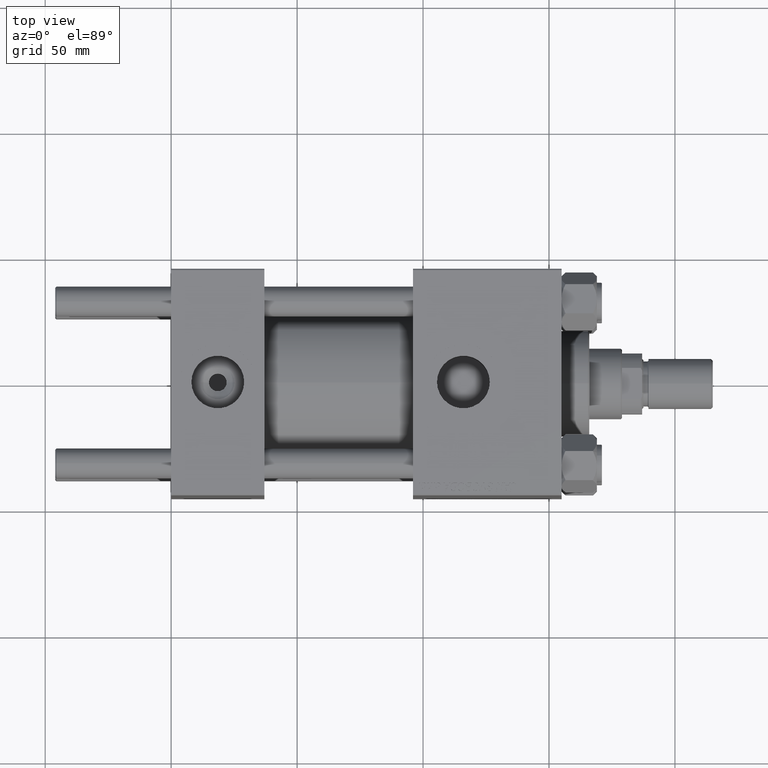
[diagram: clean part render]
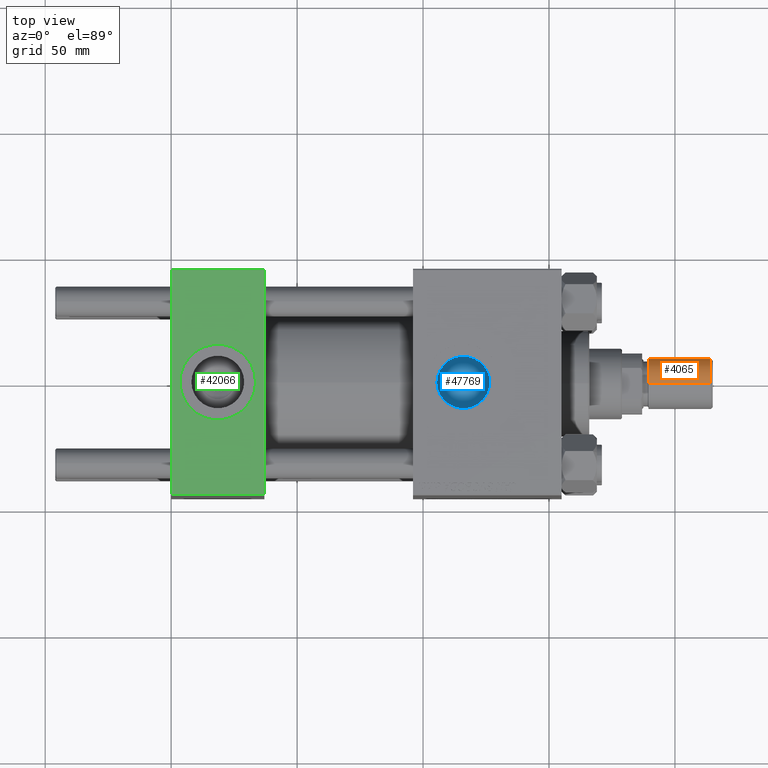
[diagram: same view with three faces highlighted in distinct colors, each labeled with its STEP entity id]
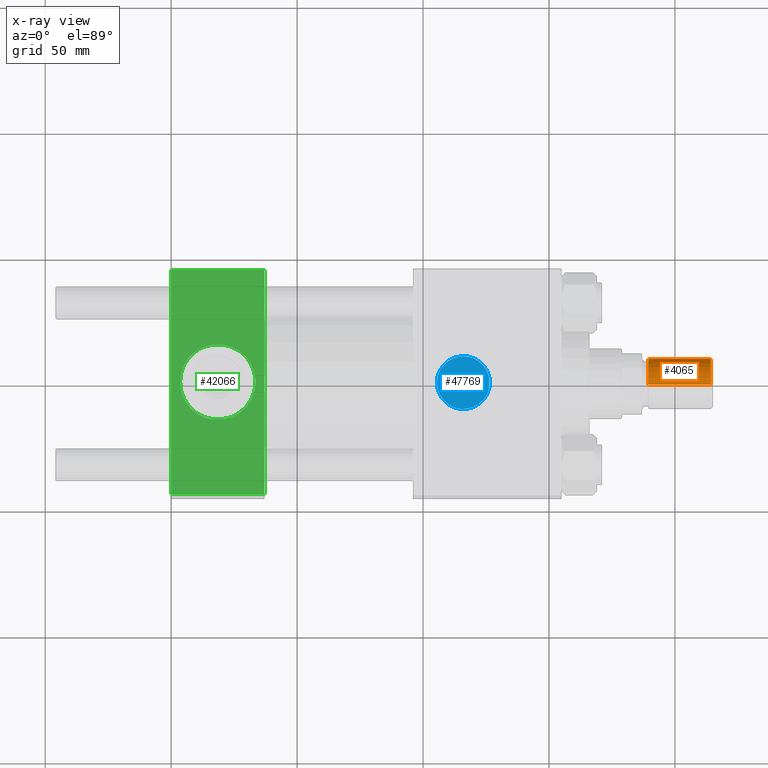
[diagram: x-ray of the same camera — body ghosted, the three highlighted faces saturated]
A machine part, top view with three faces highlighted in distinct colors.
The next image is the same camera in x-ray (body ghosted, the three faces saturated) — at least one of them is partly hidden behind the body in this view.
Their STEP definitions:

[orange] entity #4065 — the highlighted cylindrical surface (edge-blend (fillet) strip) has radius 10 mm, axis along (1, -0, 0).
#231 = CARTESIAN_POINT ( 'NONE',  ( 0.000000000000000000, 0.000000000000000000, 25.50000000000000000 ) ) ;
#1172 = VERTEX_POINT ( 'NONE', #12882 ) ;
#3226 = VERTEX_POINT ( 'NONE', #41920 ) ;
#4065 = ADVANCED_FACE ( 'NONE', ( #27543 ), #20123, .T. ) ;
#4447 = AXIS2_PLACEMENT_3D ( 'NONE', #15955, #28206, #19530 ) ;
#7733 = VECTOR ( 'NONE', #35099, 1000.000000000000000 ) ;
#9461 = DIRECTION ( 'NONE',  ( 0.000000000000000000, 0.000000000000000000, 1.000000000000000000 ) ) ;
#10352 = EDGE_LOOP ( 'NONE', ( #43303, #39457, #23837, #18718 ) ) ;
#10938 = EDGE_CURVE ( 'NONE', #3226, #12757, #34398, .T. ) ;
#12757 = VERTEX_POINT ( 'NONE', #47487 ) ;
#12882 = CARTESIAN_POINT ( 'NONE',  ( -10.00000000000000000, 0.000000000000000000, 25.50000000000000000 ) ) ;
#15955 = CARTESIAN_POINT ( 'NONE',  ( 0.000000000000000000, 0.000000000000000000, 0.8000000000000055955 ) ) ;
#16453 = LINE ( 'NONE', #27965, #7733 ) ;
#18718 = ORIENTED_EDGE ( 'NONE', *, *, #20288, .F. ) ;
#19530 = DIRECTION ( 'NONE',  ( 1.000000000000000000, 0.000000000000000000, 0.000000000000000000 ) ) ;
#19633 = CIRCLE ( 'NONE', #48107, 10.00000000000000000 ) ;
#20123 = CYLINDRICAL_SURFACE ( 'NONE', #25924, 10.00000000000000000 ) ;
#20266 = EDGE_CURVE ( 'NONE', #12757, #49273, #29729, .T. ) ;
#20288 = EDGE_CURVE ( 'NONE', #1172, #49273, #16453, .T. ) ;
#23695 = DIRECTION ( 'NONE',  ( -1.000000000000000000, 0.000000000000000000, 0.000000000000000000 ) ) ;
#23837 = ORIENTED_EDGE ( 'NONE', *, *, #20266, .T. ) ;
#25924 = AXIS2_PLACEMENT_3D ( 'NONE', #231, #46624, #23695 ) ;
#27543 = FACE_OUTER_BOUND ( 'NONE', #10352, .T. ) ;
#27965 = CARTESIAN_POINT ( 'NONE',  ( -10.00000000000000000, 0.000000000000000000, 25.50000000000000000 ) ) ;
#28206 = DIRECTION ( 'NONE',  ( -0.000000000000000000, -0.000000000000000000, 1.000000000000000000 ) ) ;
#28602 = CARTESIAN_POINT ( 'NONE',  ( 0.000000000000000000, 0.000000000000000000, 25.50000000000000000 ) ) ;
#29729 = CIRCLE ( 'NONE', #4447, 10.00000000000000000 ) ;
#30567 = CARTESIAN_POINT ( 'NONE',  ( 10.00000000000000000, 1.224646799147353256E-15, 25.50000000000000000 ) ) ;
#34398 = LINE ( 'NONE', #30567, #37700 ) ;
#35099 = DIRECTION ( 'NONE',  ( -0.000000000000000000, -0.000000000000000000, -1.000000000000000000 ) ) ;
#37700 = VECTOR ( 'NONE', #46349, 1000.000000000000000 ) ;
#39457 = ORIENTED_EDGE ( 'NONE', *, *, #10938, .T. ) ;
#41200 = EDGE_CURVE ( 'NONE', #3226, #1172, #19633, .T. ) ;
#41920 = CARTESIAN_POINT ( 'NONE',  ( 10.00000000000000000, 1.224646799147353256E-15, 25.50000000000000000 ) ) ;
#43303 = ORIENTED_EDGE ( 'NONE', *, *, #41200, .F. ) ;
#44379 = DIRECTION ( 'NONE',  ( 1.000000000000000000, 0.000000000000000000, 0.000000000000000000 ) ) ;
#44854 = CARTESIAN_POINT ( 'NONE',  ( -10.00000000000000000, 0.000000000000000000, 0.8000000000000055955 ) ) ;
#46349 = DIRECTION ( 'NONE',  ( -0.000000000000000000, -0.000000000000000000, -1.000000000000000000 ) ) ;
#46624 = DIRECTION ( 'NONE',  ( -0.000000000000000000, -0.000000000000000000, -1.000000000000000000 ) ) ;
#47487 = CARTESIAN_POINT ( 'NONE',  ( 10.00000000000000000, 1.224646799147353256E-15, 0.8000000000000055955 ) ) ;
#48107 = AXIS2_PLACEMENT_3D ( 'NONE', #28602, #9461, #44379 ) ;
#49273 = VERTEX_POINT ( 'NONE', #44854 ) ;

[blue] entity #47769 — the highlighted planar face has unit normal (0, 0, 1).
#228 = VERTEX_POINT ( 'NONE', #36823 ) ;
#659 = DIRECTION ( 'NONE',  ( 0.000000000000000000, 0.000000000000000000, 1.000000000000000000 ) ) ;
#1652 = DIRECTION ( 'NONE',  ( 1.000000000000000000, 0.000000000000000000, 0.000000000000000000 ) ) ;
#1883 = DIRECTION ( 'NONE',  ( 0.000000000000000000, 0.000000000000000000, 1.000000000000000000 ) ) ;
#1914 = LINE ( 'NONE', #40923, #11600 ) ;
#1957 = EDGE_CURVE ( 'NONE', #43645, #16848, #2197, .T. ) ;
#2197 = CIRCLE ( 'NONE', #15234, 10.48000000000000398 ) ;
#2820 = EDGE_CURVE ( 'NONE', #16848, #228, #38916, .T. ) ;
#5711 = CARTESIAN_POINT ( 'NONE',  ( 116.0000000000000000, -6.938893903907227589E-15, 28.59999999999998721 ) ) ;
#7303 = CARTESIAN_POINT ( 'NONE',  ( 116.0000000000000000, -6.938893903907227589E-15, 28.59999999999998721 ) ) ;
#9560 = AXIS2_PLACEMENT_3D ( 'NONE', #27718, #12148, #1652 ) ;
#11600 = VECTOR ( 'NONE', #13145, 1000.000000000000000 ) ;
#12148 = DIRECTION ( 'NONE',  ( 0.000000000000000000, 0.000000000000000000, 1.000000000000000000 ) ) ;
#12873 = DIRECTION ( 'NONE',  ( 1.000000000000000000, 0.000000000000000000, -0.000000000000000000 ) ) ;
#13145 = DIRECTION ( 'NONE',  ( 0.000000000000000000, -1.000000000000000000, 0.000000000000000000 ) ) ;
#14563 = ORIENTED_EDGE ( 'NONE', *, *, #2820, .T. ) ;
#15234 = AXIS2_PLACEMENT_3D ( 'NONE', #7303, #659, #43233 ) ;
#16848 = VERTEX_POINT ( 'NONE', #40279 ) ;
#20528 = EDGE_LOOP ( 'NONE', ( #45120, #14563, #33228 ) ) ;
#22848 = CARTESIAN_POINT ( 'NONE',  ( 126.2999999999999972, 1.934011375354389939, 28.59999999999998721 ) ) ;
#25120 = PLANE ( 'NONE',  #45060 ) ;
#27718 = CARTESIAN_POINT ( 'NONE',  ( 116.0000000000000000, -6.938893903907227589E-15, 28.59999999999998721 ) ) ;
#28938 = FACE_OUTER_BOUND ( 'NONE', #20528, .T. ) ;
#33228 = ORIENTED_EDGE ( 'NONE', *, *, #45195, .F. ) ;
#36823 = CARTESIAN_POINT ( 'NONE',  ( 126.2999999999999972, -1.934011375354403928, 28.59999999999998721 ) ) ;
#38916 = CIRCLE ( 'NONE', #9560, 10.48000000000000398 ) ;
#40279 = CARTESIAN_POINT ( 'NONE',  ( 105.5199999999999960, -6.938893903907227589E-15, 28.59999999999998721 ) ) ;
#40923 = CARTESIAN_POINT ( 'NONE',  ( 126.2999999999999972, 0.000000000000000000, 28.59999999999998721 ) ) ;
#43233 = DIRECTION ( 'NONE',  ( 1.000000000000000000, 0.000000000000000000, 0.000000000000000000 ) ) ;
#43645 = VERTEX_POINT ( 'NONE', #22848 ) ;
#45060 = AXIS2_PLACEMENT_3D ( 'NONE', #5711, #1883, #12873 ) ;
#45120 = ORIENTED_EDGE ( 'NONE', *, *, #1957, .T. ) ;
#45195 = EDGE_CURVE ( 'NONE', #43645, #228, #1914, .T. ) ;
#47769 = ADVANCED_FACE ( 'NONE', ( #28938 ), #25120, .T. ) ;

[green] entity #42066 — the highlighted planar face has unit normal (0, 0, -1).
#1041 = CARTESIAN_POINT ( 'NONE',  ( 0.000000000000000000, 44.49999999999998579, 45.00000000000001421 ) ) ;
#1256 = VERTEX_POINT ( 'NONE', #32763 ) ;
#1809 = FACE_OUTER_BOUND ( 'NONE', #32047, .T. ) ;
#2021 = EDGE_CURVE ( 'NONE', #6119, #44619, #7085, .T. ) ;
#3260 = CARTESIAN_POINT ( 'NONE',  ( 37.00000000000000000, -44.49999999999995737, 45.00000000000000000 ) ) ;
#3508 = LINE ( 'NONE', #33884, #30391 ) ;
#5480 = CARTESIAN_POINT ( 'NONE',  ( 18.50000000000000000, -8.673617379884038628E-15, 45.00000000000000711 ) ) ;
#6119 = VERTEX_POINT ( 'NONE', #38811 ) ;
#7085 = CIRCLE ( 'NONE', #42901, 15.00000000000000355 ) ;
#8535 = VECTOR ( 'NONE', #14851, 1000.000000000000000 ) ;
#9536 = ORIENTED_EDGE ( 'NONE', *, *, #15973, .T. ) ;
#12750 = VECTOR ( 'NONE', #49179, 1000.000000000000000 ) ;
#13571 = EDGE_CURVE ( 'NONE', #30082, #33471, #49515, .T. ) ;
#13628 = DIRECTION ( 'NONE',  ( 0.000000000000000000, 0.000000000000000000, 1.000000000000000000 ) ) ;
#13650 = ORIENTED_EDGE ( 'NONE', *, *, #50107, .T. ) ;
#14839 = DIRECTION ( 'NONE',  ( 0.000000000000000000, -1.000000000000000000, -1.541976423090495387E-16 ) ) ;
#14851 = DIRECTION ( 'NONE',  ( 1.000000000000000000, 0.000000000000000000, 0.000000000000000000 ) ) ;
#15973 = EDGE_CURVE ( 'NONE', #1256, #30082, #3508, .T. ) ;
#16959 = DIRECTION ( 'NONE',  ( 0.000000000000000000, 0.000000000000000000, 1.000000000000000000 ) ) ;
#17351 = CARTESIAN_POINT ( 'NONE',  ( 3.499999999999997780, -6.836647181163008250E-15, 45.00000000000000711 ) ) ;
#17366 = CARTESIAN_POINT ( 'NONE',  ( 37.00000000000000000, 44.99999999999998579, 45.00000000000001421 ) ) ;
#18083 = LINE ( 'NONE', #41033, #12750 ) ;
#18124 = FACE_BOUND ( 'NONE', #47189, .T. ) ;
#20388 = EDGE_CURVE ( 'NONE', #44619, #6119, #33810, .T. ) ;
#21049 = CARTESIAN_POINT ( 'NONE',  ( 18.50000000000000000, -8.673617379884038628E-15, 45.00000000000000711 ) ) ;
#21900 = DIRECTION ( 'NONE',  ( -1.000000000000000000, 0.000000000000000000, 0.000000000000000000 ) ) ;
#24851 = AXIS2_PLACEMENT_3D ( 'NONE', #21049, #13628, #40408 ) ;
#25149 = VERTEX_POINT ( 'NONE', #3260 ) ;
#26912 = ORIENTED_EDGE ( 'NONE', *, *, #13571, .T. ) ;
#27055 = VECTOR ( 'NONE', #14839, 1000.000000000000000 ) ;
#27822 = EDGE_CURVE ( 'NONE', #1256, #25149, #18083, .T. ) ;
#28864 = DIRECTION ( 'NONE',  ( 0.000000000000000000, 1.541976423090495633E-16, -1.000000000000000000 ) ) ;
#30082 = VERTEX_POINT ( 'NONE', #1041 ) ;
#30391 = VECTOR ( 'NONE', #21900, 1000.000000000000000 ) ;
#31501 = CARTESIAN_POINT ( 'NONE',  ( 0.000000000000000000, -44.49999999999995737, 45.00000000000000000 ) ) ;
#32047 = EDGE_LOOP ( 'NONE', ( #26912, #13650, #39851, #9536 ) ) ;
#32763 = CARTESIAN_POINT ( 'NONE',  ( 37.00000000000000000, 44.49999999999998579, 45.00000000000001421 ) ) ;
#33471 = VERTEX_POINT ( 'NONE', #31501 ) ;
#33810 = CIRCLE ( 'NONE', #24851, 15.00000000000000355 ) ;
#33884 = CARTESIAN_POINT ( 'NONE',  ( 0.000000000000000000, 44.49999999999998579, 45.00000000000001421 ) ) ;
#37817 = LINE ( 'NONE', #42388, #8535 ) ;
#38811 = CARTESIAN_POINT ( 'NONE',  ( 33.50000000000000000, -8.673617379884038628E-15, 45.00000000000000711 ) ) ;
#39851 = ORIENTED_EDGE ( 'NONE', *, *, #27822, .F. ) ;
#40408 = DIRECTION ( 'NONE',  ( 1.000000000000000000, 0.000000000000000000, 0.000000000000000000 ) ) ;
#40810 = DIRECTION ( 'NONE',  ( 0.000000000000000000, 1.000000000000000000, 1.541976423090495633E-16 ) ) ;
#41033 = CARTESIAN_POINT ( 'NONE',  ( 37.00000000000000000, 44.99999999999998579, 45.00000000000001421 ) ) ;
#42066 = ADVANCED_FACE ( 'NONE', ( #18124, #1809 ), #44639, .F. ) ;
#42388 = CARTESIAN_POINT ( 'NONE',  ( 37.00000000000000000, -44.49999999999998579, 45.00000000000000000 ) ) ;
#42901 = AXIS2_PLACEMENT_3D ( 'NONE', #5480, #16959, #43975 ) ;
#43975 = DIRECTION ( 'NONE',  ( 1.000000000000000000, 0.000000000000000000, 0.000000000000000000 ) ) ;
#44619 = VERTEX_POINT ( 'NONE', #17351 ) ;
#44639 = PLANE ( 'NONE',  #44911 ) ;
#44911 = AXIS2_PLACEMENT_3D ( 'NONE', #17366, #28864, #40810 ) ;
#47189 = EDGE_LOOP ( 'NONE', ( #47559, #48458 ) ) ;
#47559 = ORIENTED_EDGE ( 'NONE', *, *, #2021, .F. ) ;
#48458 = ORIENTED_EDGE ( 'NONE', *, *, #20388, .F. ) ;
#49006 = CARTESIAN_POINT ( 'NONE',  ( 0.000000000000000000, 44.99999999999998579, 45.00000000000001421 ) ) ;
#49179 = DIRECTION ( 'NONE',  ( 0.000000000000000000, -1.000000000000000000, -1.541976423090495387E-16 ) ) ;
#49515 = LINE ( 'NONE', #49006, #27055 ) ;
#50107 = EDGE_CURVE ( 'NONE', #33471, #25149, #37817, .T. ) ;